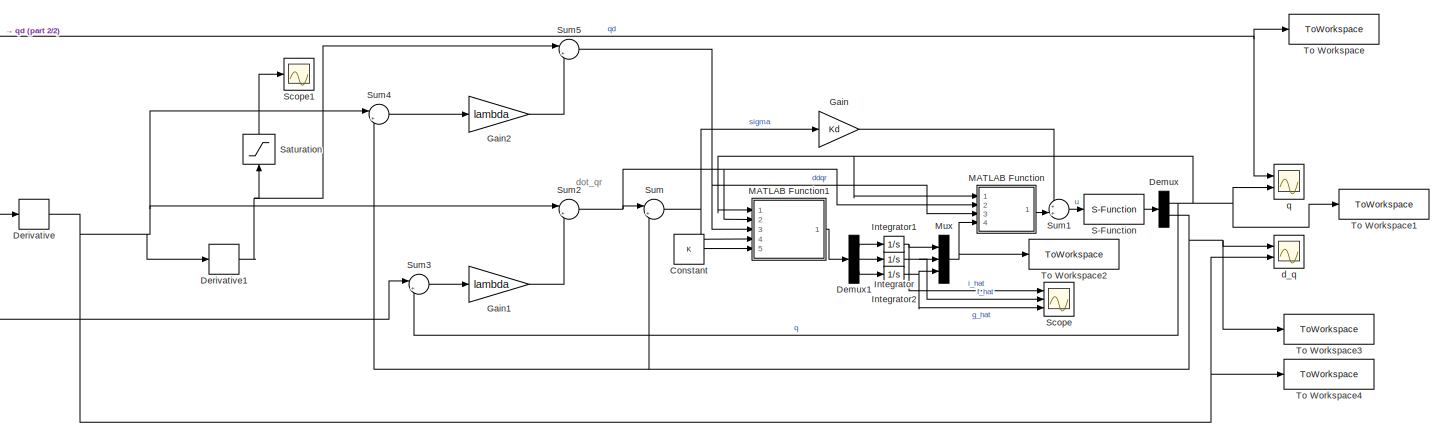
[diagram: root canvas - part 1/2, most of the canvas]
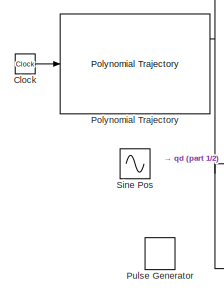
[diagram: root canvas - part 2/2, middle left region]
MODEL slx_9604e6358238
KIND model
CONFIG AbsTol = auto
CONFIG EnableMultiTasking = off
CONFIG FixedStep = 0.001
CONFIG MaxStep = auto
CONFIG MinStep = auto
CONFIG RelTol = 1e-3
CONFIG SampleTimeConstraint = Unconstrained
CONFIG SolverName = FixedStepAuto
CONFIG StartTime = 0.0
CONFIG StopTime = 6
BLOCK [Clock] Clock
BLOCK [Constant] Constant
  Value = K
BLOCK [Demux] Demux
  Outputs = 2
  Ports = [1, 2]
BLOCK [Demux] Demux1
  Outputs = 3
  Ports = [1, 3]
BLOCK [Derivative] Derivative
BLOCK [Derivative] Derivative1
BLOCK [Gain] Gain
  Gain = Kd
  NameLocation = top
BLOCK [Gain] Gain1
  Gain = lambda
  NameLocation = top
BLOCK [Gain] Gain2
  Gain = lambda
  NameLocation = top
BLOCK [Integrator] Integrator
  InitialCondition = param.F
  Ports = [1, 1]
BLOCK [Integrator] Integrator1
  InitialCondition = param.I
  Ports = [1, 1]
BLOCK [Integrator] Integrator2
  InitialCondition = param.G
  Ports = [1, 1]
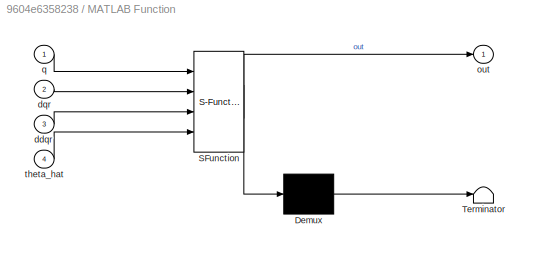
BLOCK [SubSystem] MATLAB Function
  ErrorFcn = Stateflow.Translate.translate
  NameLocation = top
  PermitHierarchicalResolution = ExplicitOnly
  Ports = [4, 1]
  RequestExecContextInheritance = off
  SFBlockType = MATLAB Function
  TreatAsAtomicUnit = on
BLOCK [Demux] MATLAB Function/ Demux 
  Outputs = 1
  Ports = [1, 1]
BLOCK [S-Function] MATLAB Function/ SFunction 
  EnableBusSupport = on
  FunctionName = sf_sfun
  PortCounts = [4 2]
  Ports = [4, 2]
  SFcnIsStateOwnerBlock = off
  SFunctionDeploymentMode = off
  Tag = Stateflow S-Function 2
BLOCK [Terminator] MATLAB Function/ Terminator 
BLOCK [Inport] MATLAB Function/ddqr
  Port = 3
BLOCK [Inport] MATLAB Function/dqr
  Port = 2
BLOCK [Outport] MATLAB Function/out
BLOCK [Inport] MATLAB Function/q
BLOCK [Inport] MATLAB Function/theta_hat
  Port = 4
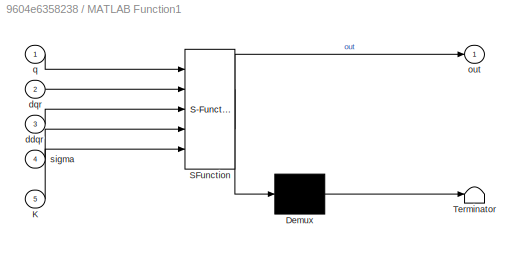
BLOCK [SubSystem] MATLAB Function1
  ErrorFcn = Stateflow.Translate.translate
  NameLocation = top
  PermitHierarchicalResolution = ExplicitOnly
  Ports = [5, 1]
  RequestExecContextInheritance = off
  SFBlockType = MATLAB Function
  TreatAsAtomicUnit = on
BLOCK [Demux] MATLAB Function1/ Demux 
  Outputs = 1
  Ports = [1, 1]
BLOCK [S-Function] MATLAB Function1/ SFunction 
  EnableBusSupport = on
  FunctionName = sf_sfun
  PortCounts = [5 2]
  Ports = [5, 2]
  SFcnIsStateOwnerBlock = off
  SFunctionDeploymentMode = off
  Tag = Stateflow S-Function 1
BLOCK [Terminator] MATLAB Function1/ Terminator 
BLOCK [Inport] MATLAB Function1/K
  Port = 5
BLOCK [Inport] MATLAB Function1/ddqr
  Port = 3
BLOCK [Inport] MATLAB Function1/dqr
  Port = 2
BLOCK [Outport] MATLAB Function1/out
BLOCK [Inport] MATLAB Function1/q
BLOCK [Inport] MATLAB Function1/sigma
  Port = 4
BLOCK [Mux] Mux
  DisplayOption = bar
  Inputs = 3
  Ports = [3, 1]
BLOCK [Reference] Polynomial Trajectory  REF=robotcorelib/Polynomial Trajectory
  Ports = [1, 3]
  SourceBlock = robotcorelib/Polynomial Trajectory
  SourceProductBaseCode = NV,RO,RR,UV
  SourceType = robotics.slcore.internal.block.PolyTrajSys
BLOCK [DiscretePulseGenerator] Pulse Generator
  Amplitude = 0.1
  Ports = [0, 1]
  PulseType = Time based
  PulseWidth = 5
BLOCK [S-Function] S-Function
  EnableBusSupport = off
  FunctionName = Manipulator
  Parameters = param
  Ports = [1, 1]
  SFcnIsStateOwnerBlock = off
  SFunctionDeploymentMode = off
BLOCK [Saturate] Saturation
  LowerLimit = -20
  NameLocation = right
  UpperLimit = 20
BLOCK [Scope] Scope
  Floating = off
  NumInputPorts = 3
  Ports = [3]
  ScopeSpecificationString = Simulink.scopes.TimeScopeBlockCfg('CurrentConfiguration', extmgr.ConfigurationSet(extmgr.Configuration('Core','General UI',true),extmgr.Configuration('Core','Source UI',true),extmgr.Configuration('Sources','WiredSimulink',true,'DataLoggingVariableName','ScopeData1'),extmgr.Configuration('Visuals','Time Domain',true,'SerializedDisplays',{struct('MinYLimReal','-0.15349','MaxYLimReal','2.19723','YLab...<+1444ch>
BLOCK [Scope] Scope1
  Floating = off
  NumInputPorts = 1
  Ports = [1]
  ScopeSpecificationString = Simulink.scopes.TimeScopeBlockCfg('CurrentConfiguration', extmgr.ConfigurationSet(extmgr.Configuration('Core','General UI',true),extmgr.Configuration('Core','Source UI',true),extmgr.Configuration('Sources','WiredSimulink',true,'DataLoggingVariableName','ScopeData1'),extmgr.Configuration('Visuals','Time Domain',true,'SerializedDisplays',{struct('MinYLimReal','-25.00000','MaxYLimReal','25.00000','YL...<+1430ch>
BLOCK [Sin] Sine Pos
  Amplitude = 0.1
  Frequency = 2*pi*2
  Ports = [0, 1]
  SampleTime = 0
BLOCK [Sum] Sum
  Inputs = |+-
  Ports = [2, 1]
BLOCK [Sum] Sum1
  Inputs = ++|
  Ports = [2, 1]
BLOCK [Sum] Sum2
  Inputs = |++
  Ports = [2, 1]
BLOCK [Sum] Sum3
  Inputs = |+-
  Ports = [2, 1]
BLOCK [Sum] Sum4
  Inputs = |+-
  Ports = [2, 1]
BLOCK [Sum] Sum5
  Inputs = |++
  Ports = [2, 1]
BLOCK [ToWorkspace] To Workspace
  FixptAsFi = on
  MaxDataPoints = inf
  Ports = [1]
  SampleTime = -1
  SaveFormat = Timeseries
  VariableName = q
BLOCK [ToWorkspace] To Workspace1
  FixptAsFi = on
  MaxDataPoints = inf
  Ports = [1]
  SampleTime = -1
  SaveFormat = Timeseries
  VariableName = qd
BLOCK [ToWorkspace] To Workspace2
  FixptAsFi = on
  MaxDataPoints = inf
  Ports = [1]
  SampleTime = -1
  SaveFormat = Timeseries
  VariableName = param
BLOCK [ToWorkspace] To Workspace3
  FixptAsFi = on
  MaxDataPoints = inf
  Ports = [1]
  SampleTime = -1
  SaveFormat = Timeseries
  VariableName = dq
BLOCK [ToWorkspace] To Workspace4
  FixptAsFi = on
  MaxDataPoints = inf
  Ports = [1]
  SampleTime = -1
  SaveFormat = Timeseries
  VariableName = dqd
BLOCK [Scope] d_q
  Floating = off
  NumInputPorts = 2
  Ports = [2]
  ScopeSpecificationString = Simulink.scopes.TimeScopeBlockCfg('CurrentConfiguration', extmgr.ConfigurationSet(extmgr.Configuration('Core','General UI',true),extmgr.Configuration('Core','Source UI',true),extmgr.Configuration('Sources','WiredSimulink',true),extmgr.Configuration('Visuals','Time Domain',true,'SerializedDisplays',{struct('MinYLimReal','-9.18809','MaxYLimReal','7.68798','YLabelReal','','MinYLimMag','0.00000','MaxY...<+1431ch>
BLOCK [Scope] q
  Floating = off
  NumInputPorts = 2
  Ports = [2]
  ScopeSpecificationString = Simulink.scopes.TimeScopeBlockCfg('CurrentConfiguration', extmgr.ConfigurationSet(extmgr.Configuration('Core','General UI',true),extmgr.Configuration('Core','Source UI',true),extmgr.Configuration('Sources','WiredSimulink',true,'DataLoggingVariableName','ScopeData1'),extmgr.Configuration('Visuals','Time Domain',true,'SerializedDisplays',{struct('MinYLimReal','-0.62529','MaxYLimReal','5.62524','YLab...<+1513ch>
ANNOTATION (root): dot_qr
LINE Clock:1 -> Polynomial Trajectory:1
LINE Constant:1 -> MATLAB Function1:5
LINE Demux1:1 -> Integrator1:1
LINE Demux1:2 -> Integrator:1
LINE Demux1:3 -> Integrator2:1
NET Demux:1 -> MATLAB Function1:1, MATLAB Function:1, Sum3:2, To Workspace1:1, q:2
NET Demux:2 -> Sum4:2, Sum:2, To Workspace3:1, d_q:1
NET Derivative1:1 -> Saturation:1, Sum5:1
NET Derivative:1 -> Derivative1:1, Sum2:1, Sum4:1, To Workspace4:1, d_q:2
LINE Gain1:1 -> Sum2:2
LINE Gain2:1 -> Sum5:2
LINE Gain:1 -> Sum1:1
NET Integrator1:1 -> Mux:1, Scope:1
NET Integrator2:1 -> Mux:3, Scope:3
NET Integrator:1 -> Mux:2, Scope:2
LINE MATLAB Function1:1 -> Demux1:1
LINE MATLAB Function:1 -> Sum1:2
NET Mux:1 -> MATLAB Function:4, To Workspace2:1
NET Polynomial Trajectory:1 -> Derivative:1, Sum3:1, To Workspace:1, q:1
LINE S-Function:1 -> Demux:1
LINE Saturation:1 -> Scope1:1
LINE Sum1:1 -> S-Function:1
NET Sum2:1 -> MATLAB Function1:2, MATLAB Function:2, Sum:1
LINE Sum3:1 -> Gain1:1
LINE Sum4:1 -> Gain2:1
NET Sum5:1 -> MATLAB Function1:3, MATLAB Function:3
NET Sum:1 -> Gain:1, MATLAB Function1:4
note: NET lines group one-source signal fan-out (src -> all destinations, sorted); 1:1 wires keep LINE
CHART MATLAB Function1 states=1 transitions=1
  STATE_LABEL 'eML_blk_kernel()'
  STATE_LABEL "SCRIPT:\nfunction out = KY(q,  dqr, ddqr, sigma, K)\n    Y = [ddqr, dqr sin(q)];\n    \n    out = inv(K)*Y'*sigma;\nend\n"
CHART MATLAB Function states=1 transitions=1
  STATE_LABEL 'eML_blk_kernel()'
  STATE_LABEL 'SCRIPT:\nfunction out = Y(q,dqr,ddqr, theta_hat)\n    Y = [ddqr, dqr sin(q)];\n    \n    out = Y*theta_hat;\nend\n'
CHART  states=0 transitions=0
CHART  states=0 transitions=0
